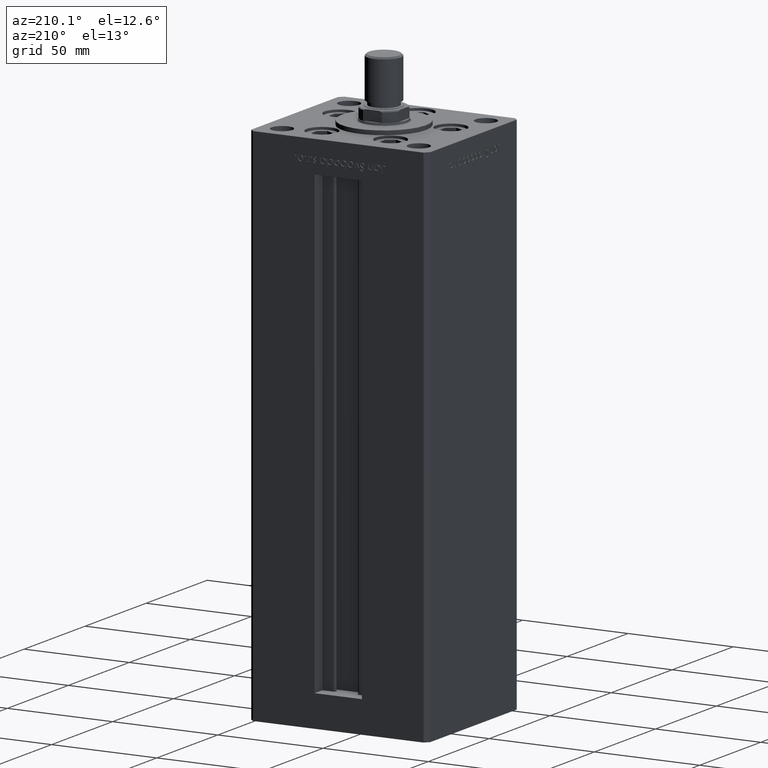
[diagram: clean part render]
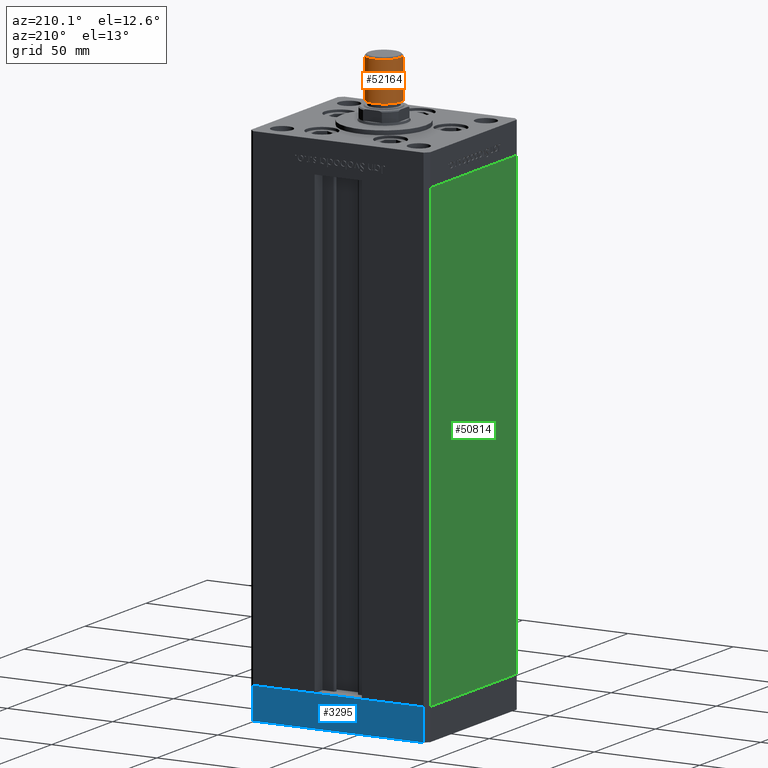
[diagram: same view with three faces highlighted in distinct colors, each labeled with its STEP entity id]
A machine part, auxiliary view with three faces highlighted in distinct colors.
Their STEP definitions:

[orange] entity #52164 — the highlighted cylindrical surface (edge-blend (fillet) strip) has radius 8 mm, axis along (0, 0, 1).
#671 = DIRECTION ( 'NONE',  ( -0.000000000000000000, -0.000000000000000000, -1.000000000000000000 ) ) ;
#2033 = CARTESIAN_POINT ( 'NONE',  ( -8.000000000000000000, 0.000000000000000000, 0.8000000000000055955 ) ) ;
#3564 = ORIENTED_EDGE ( 'NONE', *, *, #47472, .T. ) ;
#4224 = AXIS2_PLACEMENT_3D ( 'NONE', #8565, #9355, #36912 ) ;
#5817 = FACE_OUTER_BOUND ( 'NONE', #48581, .T. ) ;
#5887 = VECTOR ( 'NONE', #32437, 1000.000000000000000 ) ;
#7549 = ORIENTED_EDGE ( 'NONE', *, *, #24896, .F. ) ;
#8043 = CARTESIAN_POINT ( 'NONE',  ( -8.000000000000000000, 0.000000000000000000, 19.50000000000000000 ) ) ;
#8565 = CARTESIAN_POINT ( 'NONE',  ( 0.000000000000000000, 0.000000000000000000, 19.50000000000000000 ) ) ;
#8892 = LINE ( 'NONE', #41205, #33812 ) ;
#9301 = CIRCLE ( 'NONE', #4224, 8.000000000000000000 ) ;
#9355 = DIRECTION ( 'NONE',  ( 0.000000000000000000, 0.000000000000000000, 1.000000000000000000 ) ) ;
#12997 = CARTESIAN_POINT ( 'NONE',  ( 0.000000000000000000, 0.000000000000000000, 19.50000000000000000 ) ) ;
#14722 = DIRECTION ( 'NONE',  ( 1.000000000000000000, 0.000000000000000000, 0.000000000000000000 ) ) ;
#14981 = DIRECTION ( 'NONE',  ( -0.000000000000000000, -0.000000000000000000, 1.000000000000000000 ) ) ;
#15510 = CARTESIAN_POINT ( 'NONE',  ( 8.000000000000000000, 9.797174393178825657E-16, 19.50000000000000000 ) ) ;
#16109 = CIRCLE ( 'NONE', #39792, 8.000000000000000000 ) ;
#19746 = VERTEX_POINT ( 'NONE', #22929 ) ;
#21289 = EDGE_CURVE ( 'NONE', #19746, #51223, #16109, .T. ) ;
#22817 = VERTEX_POINT ( 'NONE', #27586 ) ;
#22929 = CARTESIAN_POINT ( 'NONE',  ( 8.000000000000000000, 9.797174393178825657E-16, 0.8000000000000055955 ) ) ;
#24896 = EDGE_CURVE ( 'NONE', #22817, #48366, #9301, .T. ) ;
#24926 = CYLINDRICAL_SURFACE ( 'NONE', #43219, 8.000000000000000000 ) ;
#27586 = CARTESIAN_POINT ( 'NONE',  ( 8.000000000000000000, 9.797174393178825657E-16, 19.50000000000000000 ) ) ;
#32437 = DIRECTION ( 'NONE',  ( -0.000000000000000000, -0.000000000000000000, -1.000000000000000000 ) ) ;
#32567 = CARTESIAN_POINT ( 'NONE',  ( 0.000000000000000000, 0.000000000000000000, 0.8000000000000055955 ) ) ;
#33812 = VECTOR ( 'NONE', #671, 1000.000000000000000 ) ;
#35985 = ORIENTED_EDGE ( 'NONE', *, *, #48072, .F. ) ;
#36912 = DIRECTION ( 'NONE',  ( 1.000000000000000000, 0.000000000000000000, 0.000000000000000000 ) ) ;
#36933 = LINE ( 'NONE', #15510, #5887 ) ;
#37362 = DIRECTION ( 'NONE',  ( -0.000000000000000000, -0.000000000000000000, -1.000000000000000000 ) ) ;
#37881 = DIRECTION ( 'NONE',  ( -1.000000000000000000, 0.000000000000000000, 0.000000000000000000 ) ) ;
#38074 = ORIENTED_EDGE ( 'NONE', *, *, #21289, .T. ) ;
#39792 = AXIS2_PLACEMENT_3D ( 'NONE', #32567, #14981, #14722 ) ;
#41205 = CARTESIAN_POINT ( 'NONE',  ( -8.000000000000000000, 0.000000000000000000, 19.50000000000000000 ) ) ;
#43219 = AXIS2_PLACEMENT_3D ( 'NONE', #12997, #37362, #37881 ) ;
#47472 = EDGE_CURVE ( 'NONE', #22817, #19746, #36933, .T. ) ;
#48072 = EDGE_CURVE ( 'NONE', #48366, #51223, #8892, .T. ) ;
#48366 = VERTEX_POINT ( 'NONE', #8043 ) ;
#48581 = EDGE_LOOP ( 'NONE', ( #7549, #3564, #38074, #35985 ) ) ;
#51223 = VERTEX_POINT ( 'NONE', #2033 ) ;
#52164 = ADVANCED_FACE ( 'NONE', ( #5817 ), #24926, .T. ) ;

[blue] entity #3295 — the highlighted planar face has unit normal (0, 1, 0).
#2021 = DIRECTION ( 'NONE',  ( -1.000000000000000000, -3.426614273534436165E-16, 0.000000000000000000 ) ) ;
#2320 = ORIENTED_EDGE ( 'NONE', *, *, #51187, .F. ) ;
#3295 = ADVANCED_FACE ( 'NONE', ( #7176 ), #39235, .T. ) ;
#3611 = VERTEX_POINT ( 'NONE', #10293 ) ;
#3931 = EDGE_CURVE ( 'NONE', #28189, #5392, #6519, .T. ) ;
#5392 = VERTEX_POINT ( 'NONE', #8004 ) ;
#5940 = ORIENTED_EDGE ( 'NONE', *, *, #9728, .T. ) ;
#6519 = LINE ( 'NONE', #6785, #36836 ) ;
#6785 = CARTESIAN_POINT ( 'NONE',  ( 40.49999999999991473, 37.50000000000000711, 0.000000000000000000 ) ) ;
#7176 = FACE_OUTER_BOUND ( 'NONE', #24709, .T. ) ;
#7801 = DIRECTION ( 'NONE',  ( 0.000000000000000000, 0.000000000000000000, 1.000000000000000000 ) ) ;
#7856 = VERTEX_POINT ( 'NONE', #45377 ) ;
#8004 = CARTESIAN_POINT ( 'NONE',  ( -40.50000000000000711, 37.49999999999997868, 0.000000000000000000 ) ) ;
#8682 = LINE ( 'NONE', #40743, #42338 ) ;
#9728 = EDGE_CURVE ( 'NONE', #7856, #5392, #31656, .T. ) ;
#10293 = CARTESIAN_POINT ( 'NONE',  ( 40.49999999999991473, 37.50000000000000711, -15.00000000000000000 ) ) ;
#14602 = ORIENTED_EDGE ( 'NONE', *, *, #3931, .F. ) ;
#15119 = CARTESIAN_POINT ( 'NONE',  ( 40.49999999999991473, 37.50000000000000711, -15.00000000000000000 ) ) ;
#15837 = LINE ( 'NONE', #35198, #37621 ) ;
#24709 = EDGE_LOOP ( 'NONE', ( #14602, #2320, #25075, #5940 ) ) ;
#25075 = ORIENTED_EDGE ( 'NONE', *, *, #38187, .T. ) ;
#27323 = DIRECTION ( 'NONE',  ( -3.426614273534436165E-16, 1.000000000000000000, 0.000000000000000000 ) ) ;
#27578 = DIRECTION ( 'NONE',  ( -1.000000000000000000, -3.426614273534436165E-16, 0.000000000000000000 ) ) ;
#27943 = CARTESIAN_POINT ( 'NONE',  ( -40.50000000000000711, 37.49999999999997868, -15.00000000000000000 ) ) ;
#28189 = VERTEX_POINT ( 'NONE', #30695 ) ;
#28308 = DIRECTION ( 'NONE',  ( 0.000000000000000000, 0.000000000000000000, 1.000000000000000000 ) ) ;
#30695 = CARTESIAN_POINT ( 'NONE',  ( 40.49999999999991473, 37.50000000000000711, 0.000000000000000000 ) ) ;
#31656 = LINE ( 'NONE', #27943, #39500 ) ;
#34269 = AXIS2_PLACEMENT_3D ( 'NONE', #15119, #27323, #27578 ) ;
#35198 = CARTESIAN_POINT ( 'NONE',  ( 40.49999999999991473, 37.50000000000000711, -15.00000000000000000 ) ) ;
#36836 = VECTOR ( 'NONE', #2021, 1000.000000000000000 ) ;
#37621 = VECTOR ( 'NONE', #51364, 1000.000000000000000 ) ;
#38187 = EDGE_CURVE ( 'NONE', #3611, #7856, #15837, .T. ) ;
#39235 = PLANE ( 'NONE',  #34269 ) ;
#39500 = VECTOR ( 'NONE', #7801, 1000.000000000000000 ) ;
#40743 = CARTESIAN_POINT ( 'NONE',  ( 40.49999999999991473, 37.50000000000000711, -15.00000000000000000 ) ) ;
#42338 = VECTOR ( 'NONE', #28308, 1000.000000000000000 ) ;
#45377 = CARTESIAN_POINT ( 'NONE',  ( -40.50000000000000711, 37.49999999999997868, -15.00000000000000000 ) ) ;
#51187 = EDGE_CURVE ( 'NONE', #3611, #28189, #8682, .T. ) ;
#51364 = DIRECTION ( 'NONE',  ( -1.000000000000000000, -3.426614273534436165E-16, 0.000000000000000000 ) ) ;

[green] entity #50814 — the highlighted planar face has unit normal (1, 0, 0).
#811 = CARTESIAN_POINT ( 'NONE',  ( -42.50000000000000711, 35.50000000000001421, 218.5000000000000000 ) ) ;
#1066 = CARTESIAN_POINT ( 'NONE',  ( -42.49999999999998579, -35.50000000000000711, 218.5000000000000000 ) ) ;
#1367 = EDGE_CURVE ( 'NONE', #25229, #42039, #50580, .T. ) ;
#1774 = VECTOR ( 'NONE', #36156, 1000.000000000000000 ) ;
#2359 = ORIENTED_EDGE ( 'NONE', *, *, #44534, .T. ) ;
#5964 = LINE ( 'NONE', #38544, #40496 ) ;
#6455 = DIRECTION ( 'NONE',  ( -2.931927001650941360E-16, 1.000000000000000000, 0.000000000000000000 ) ) ;
#7818 = CARTESIAN_POINT ( 'NONE',  ( -42.50000000000000711, 35.50000000000001421, 218.5000000000000000 ) ) ;
#14267 = DIRECTION ( 'NONE',  ( -0.000000000000000000, -0.000000000000000000, -1.000000000000000000 ) ) ;
#18419 = ORIENTED_EDGE ( 'NONE', *, *, #27881, .F. ) ;
#20259 = LINE ( 'NONE', #7818, #1774 ) ;
#21079 = VERTEX_POINT ( 'NONE', #43195 ) ;
#21493 = CARTESIAN_POINT ( 'NONE',  ( -42.49999999999998579, -35.50000000000000711, 218.5000000000000000 ) ) ;
#22364 = CARTESIAN_POINT ( 'NONE',  ( -42.50000000000000711, 35.50000000000001421, 218.5000000000000000 ) ) ;
#22622 = PLANE ( 'NONE',  #40643 ) ;
#24936 = VECTOR ( 'NONE', #14267, 1000.000000000000000 ) ;
#25229 = VERTEX_POINT ( 'NONE', #811 ) ;
#25372 = EDGE_CURVE ( 'NONE', #43051, #21079, #26240, .T. ) ;
#25957 = CARTESIAN_POINT ( 'NONE',  ( -42.50000000000000711, 35.50000000000001421, 218.5000000000000000 ) ) ;
#26240 = LINE ( 'NONE', #21493, #43147 ) ;
#26343 = FACE_OUTER_BOUND ( 'NONE', #51471, .T. ) ;
#26374 = DIRECTION ( 'NONE',  ( 2.931927001650941360E-16, -1.000000000000000000, 0.000000000000000000 ) ) ;
#27881 = EDGE_CURVE ( 'NONE', #25229, #43051, #20259, .T. ) ;
#36156 = DIRECTION ( 'NONE',  ( 2.931927001650941360E-16, -1.000000000000000000, 0.000000000000000000 ) ) ;
#38124 = ORIENTED_EDGE ( 'NONE', *, *, #25372, .F. ) ;
#38314 = CARTESIAN_POINT ( 'NONE',  ( -42.50000000000000711, 35.50000000000001421, 0.000000000000000000 ) ) ;
#38544 = CARTESIAN_POINT ( 'NONE',  ( -42.50000000000000711, 35.50000000000001421, 0.000000000000000000 ) ) ;
#40496 = VECTOR ( 'NONE', #26374, 1000.000000000000000 ) ;
#40643 = AXIS2_PLACEMENT_3D ( 'NONE', #22364, #51764, #6455 ) ;
#42039 = VERTEX_POINT ( 'NONE', #38314 ) ;
#43051 = VERTEX_POINT ( 'NONE', #1066 ) ;
#43147 = VECTOR ( 'NONE', #50612, 1000.000000000000000 ) ;
#43195 = CARTESIAN_POINT ( 'NONE',  ( -42.49999999999998579, -35.50000000000000711, 0.000000000000000000 ) ) ;
#44534 = EDGE_CURVE ( 'NONE', #42039, #21079, #5964, .T. ) ;
#50580 = LINE ( 'NONE', #25957, #24936 ) ;
#50612 = DIRECTION ( 'NONE',  ( -0.000000000000000000, -0.000000000000000000, -1.000000000000000000 ) ) ;
#50814 = ADVANCED_FACE ( 'NONE', ( #26343 ), #22622, .F. ) ;
#50851 = ORIENTED_EDGE ( 'NONE', *, *, #1367, .T. ) ;
#51471 = EDGE_LOOP ( 'NONE', ( #2359, #38124, #18419, #50851 ) ) ;
#51764 = DIRECTION ( 'NONE',  ( 1.000000000000000000, 2.931927001650941360E-16, -0.000000000000000000 ) ) ;